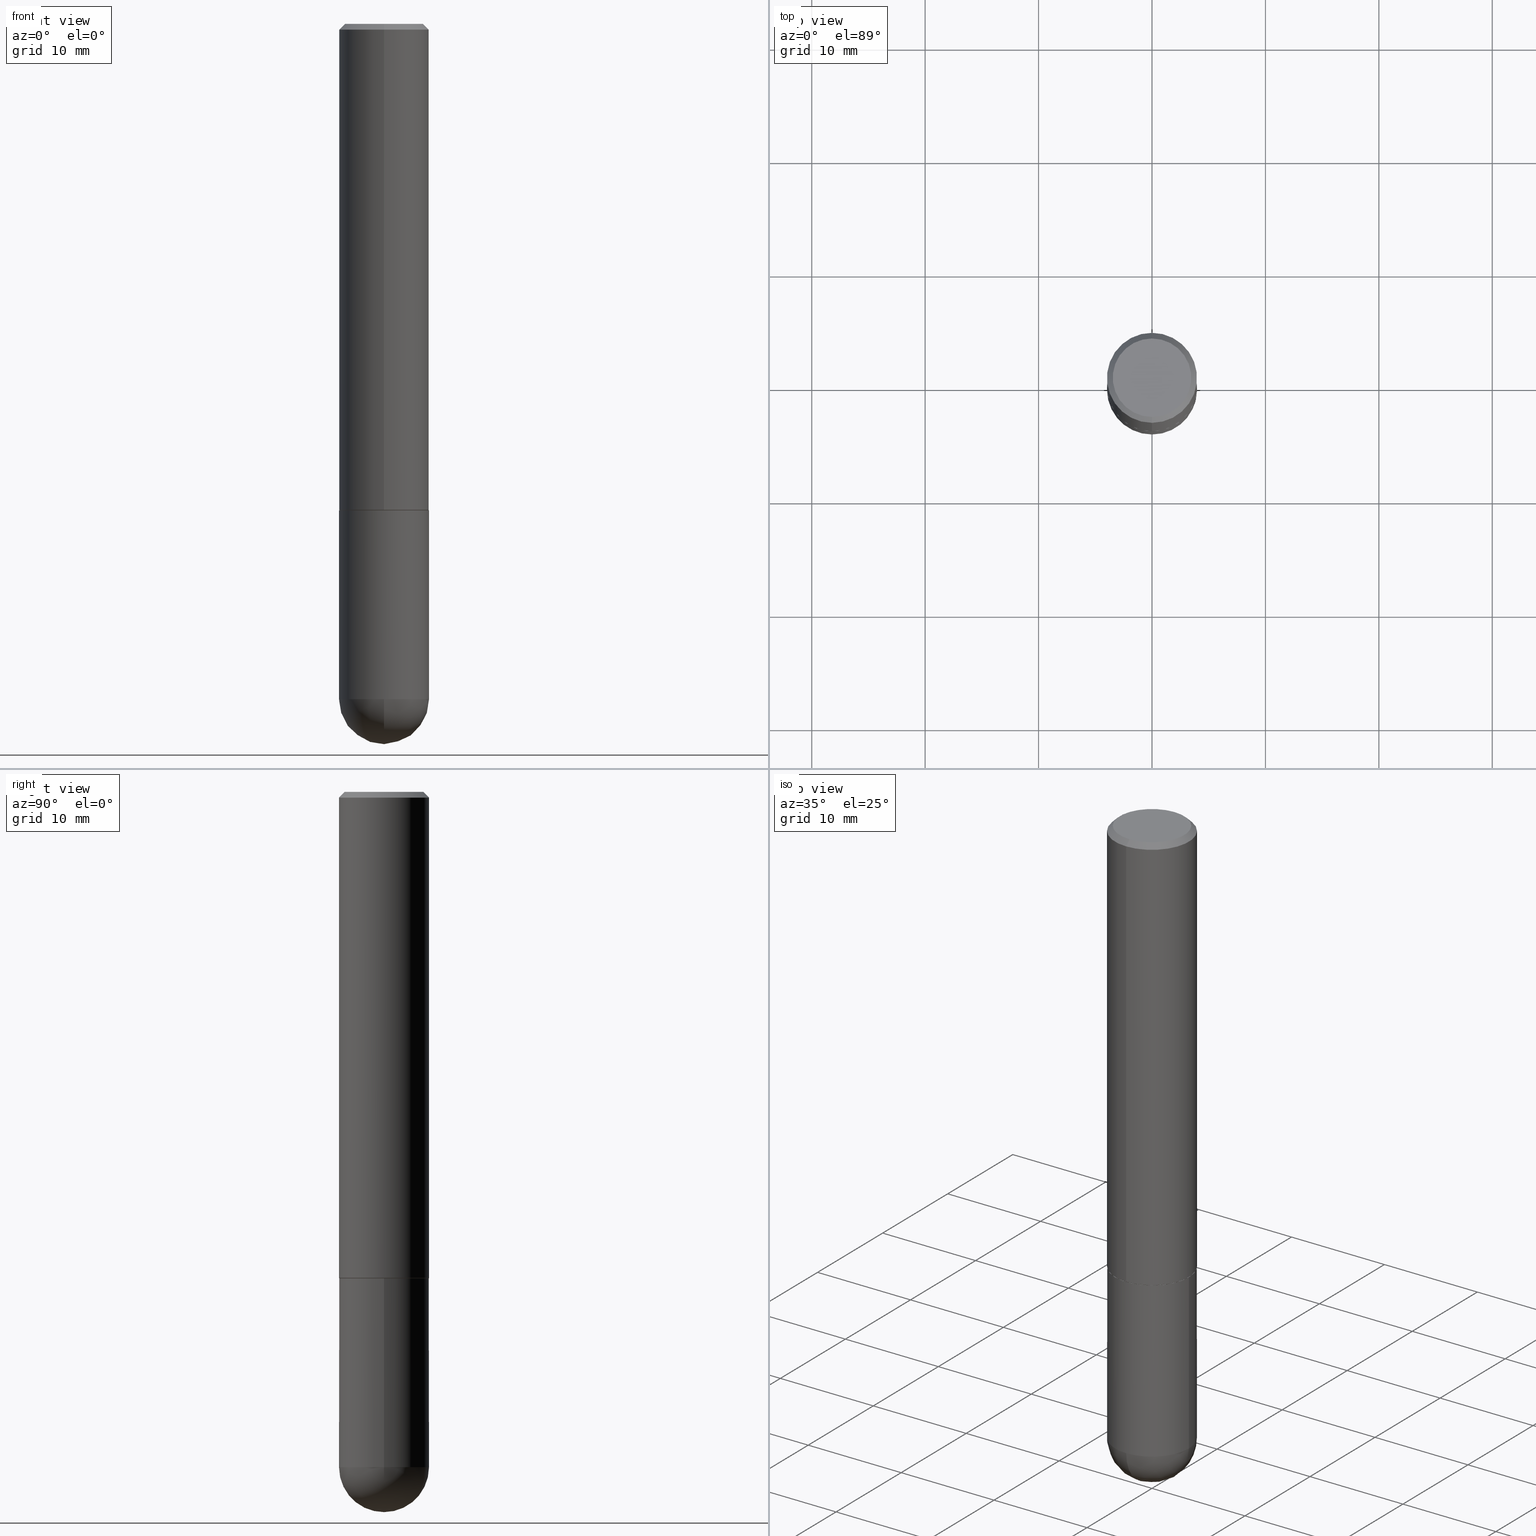
[diagram: canonical four-view strip — front | top / right | iso, engineering-drawing reading convention]
A machine part, canonical four-view strip (front | top / right | iso — engineering-drawing reading convention). The complete STEP part file that produces these views, byte-faithful:
ISO-10303-21;
HEADER;
FILE_DESCRIPTION (( 'STEP AP203' ),
    '1' );
FILE_NAME ('91283.STEP',
    '2024-04-10T12:36:15',
    ( '' ),
    ( '' ),
    'SwSTEP 2.0',
    'SolidWorks 2023',
    '' );
FILE_SCHEMA (( 'CONFIG_CONTROL_DESIGN' ));
ENDSEC;

DATA;
#1 = DIRECTION ( 'NONE',  ( -2.445468806185136597E-29, 3.491481338843145583E-15, 1.000000000000000000 ) ) ;
#2 = CIRCLE ( 'NONE', #44, 0.1562500000000000000 ) ;
#3 = DIRECTION ( 'NONE',  ( 1.000000000000000000, -6.982962677686269077E-15, 0.000000000000000000 ) ) ;
#4 = DIRECTION ( 'NONE',  ( -2.445472597884424153E-29, 3.491475908913955504E-15, 1.000000000000000000 ) ) ;
#5 = DIRECTION ( 'NONE',  ( -2.445468806185136597E-29, 3.491481338843145583E-15, 1.000000000000000000 ) ) ;
#6 = AXIS2_PLACEMENT_3D ( 'NONE', #33, #40, #387 ) ;
#7 = DIRECTION ( 'NONE',  ( -2.445472597884424153E-29, 3.491475908913955504E-15, 1.000000000000000000 ) ) ;
#8 = FACE_OUTER_BOUND ( 'NONE', #209, .T. ) ;
#9 = ADVANCED_FACE ( 'NONE', ( #281 ), #49, .F. ) ;
#10 = VERTEX_POINT ( 'NONE', #169 ) ;
#11 = AXIS2_PLACEMENT_3D ( 'NONE', #174, #4, #116 ) ;
#12 = VERTEX_POINT ( 'NONE', #194 ) ;
#13 = ADVANCED_FACE ( 'NONE', ( #137 ), #76, .T. ) ;
#14 = APPROVAL_PERSON_ORGANIZATION ( #57, #260, #412 ) ;
#15 = DIRECTION ( 'NONE',  ( -2.445468806185136877E-29, 3.491481338843145188E-15, 1.000000000000000000 ) ) ;
#16 = EDGE_LOOP ( 'NONE', ( #20, #198, #235, #113 ) ) ;
#17 = ORIENTED_EDGE ( 'NONE', *, *, #68, .T. ) ;
#18 = ORIENTED_EDGE ( 'NONE', *, *, #331, .T. ) ;
#19 = DIRECTION ( 'NONE',  ( -2.445472597884424153E-29, 3.491475908913955504E-15, 1.000000000000000000 ) ) ;
#20 = ORIENTED_EDGE ( 'NONE', *, *, #287, .F. ) ;
#21 = DIRECTION ( 'NONE',  ( 6.982962677686265922E-15, 1.000000000000000000, 0.000000000000000000 ) ) ;
#22 = SHAPE_DEFINITION_REPRESENTATION ( #377, #36 ) ;
#23 = ADVANCED_FACE ( 'NONE', ( #112 ), #397, .T. ) ;
#24 = CIRCLE ( 'NONE', #179, 0.1562500000000002498 ) ;
#25 = PERSON_AND_ORGANIZATION ( #50, #134 ) ;
#26 = DIRECTION ( 'NONE',  ( -2.445468806185136597E-29, 3.491481338843145583E-15, 1.000000000000000000 ) ) ;
#27 = PERSON_AND_ORGANIZATION_ROLE ( 'classification_officer' ) ;
#28 = CARTESIAN_POINT ( 'NONE',  ( 5.400447736582527652E-29, -8.657341756053672891E-15, -2.343750000000000000 ) ) ;
#29 = AXIS2_PLACEMENT_3D ( 'NONE', #98, #219, #126 ) ;
#30 = EDGE_CURVE ( 'NONE', #400, #10, #132, .T. ) ;
#31 = DIRECTION ( 'NONE',  ( 1.000000000000000000, -6.982962677686265922E-15, 4.883557194083112340E-29 ) ) ;
#32 =( CONVERSION_BASED_UNIT ( 'INCH', #314 ) LENGTH_UNIT ( ) NAMED_UNIT ( #344 ) );
#33 = CARTESIAN_POINT ( 'NONE',  ( 1.809228739571165048E-50, -2.583091122506221861E-36, -7.398278521445412385E-22 ) ) ;
#34 = EDGE_CURVE ( 'NONE', #258, #369, #2, .T. ) ;
#35 = ADVANCED_FACE ( 'NONE', ( #78 ), #259, .F. ) ;
#36 = ADVANCED_BREP_SHAPE_REPRESENTATION ( '91283', ( #84, #358, #354 ), #105 ) ;
#37 = DIRECTION ( 'NONE',  ( -2.445468806185136597E-29, 3.491481338843145583E-15, 1.000000000000000000 ) ) ;
#38 = CIRCLE ( 'NONE', #66, 0.1562500000000002498 ) ;
#39 = DIRECTION ( 'NONE',  ( -6.982962677686265133E-15, -1.000000000000000000, 3.496765431890256920E-15 ) ) ;
#40 = DIRECTION ( 'NONE',  ( -2.445472597884424153E-29, 3.491475908913955504E-15, 1.000000000000000000 ) ) ;
#41 = CARTESIAN_POINT ( 'NONE',  ( 4.890945195768856715E-31, -6.982951817827922742E-17, -0.02000000000000003511 ) ) ;
#42 = ORIENTED_EDGE ( 'NONE', *, *, #103, .T. ) ;
#43 = ORIENTED_EDGE ( 'NONE', *, *, #270, .F. ) ;
#44 = AXIS2_PLACEMENT_3D ( 'NONE', #41, #109, #39 ) ;
#45 = CC_DESIGN_APPROVAL ( #231, ( #376 ) ) ;
#46 = ORIENTED_EDGE ( 'NONE', *, *, #239, .F. ) ;
#47 = ORIENTED_EDGE ( 'NONE', *, *, #202, .T. ) ;
#48 = APPROVAL ( #378, 'UNSPECIFIED' ) ;
#49 = PLANE ( 'NONE',  #242 ) ;
#50 = PERSON ( 'UNSPECIFIED', 'UNSPECIFIED', 'UNSPECIFIED', ('UNSPECIFIED'), ('UNSPECIFIED'), ('UNSPECIFIED') ) ;
#51 = CARTESIAN_POINT ( 'NONE',  ( 0.000000000000000000, 0.000000000000000000, 0.000000000000000000 ) ) ;
#52 = ORIENTED_EDGE ( 'NONE', *, *, #279, .F. ) ;
#53 = CIRCLE ( 'NONE', #218, 0.1562500000000000000 ) ;
#54 = FACE_OUTER_BOUND ( 'NONE', #71, .T. ) ;
#55 = ORIENTED_EDGE ( 'NONE', *, *, #352, .F. ) ;
#56 = PERSON_AND_ORGANIZATION ( #50, #134 ) ;
#57 = PERSON_AND_ORGANIZATION ( #50, #134 ) ;
#58 = LOCAL_TIME ( 8, 36, 15.00000000000000000, #382 ) ;
#59 = CALENDAR_DATE ( 2024, 10, 4 ) ;
#60 = CARTESIAN_POINT ( 'NONE',  ( 0.1562500000000000000, -6.984708418355709513E-15, -1.688000000000000167 ) ) ;
#61 = DIRECTION ( 'NONE',  ( -2.445468806185136597E-29, 3.491481338843145583E-15, 1.000000000000000000 ) ) ;
#62 = ADVANCED_FACE ( 'NONE', ( #8 ), #293, .T. ) ;
#63 = APPLICATION_PROTOCOL_DEFINITION ( 'international standard', 'config_control_design', 1994, #120 ) ;
#64 = CARTESIAN_POINT ( 'NONE',  ( 1.110223024625178431E-15, 0.1562499999999943379, -1.687000000000000499 ) ) ;
#65 = VECTOR ( 'NONE', #274, 39.37007874015748143 ) ;
#66 = AXIS2_PLACEMENT_3D ( 'NONE', #28, #31, #21 ) ;
#67 = CARTESIAN_POINT ( 'NONE',  ( -1.071952812151801215E-15, -0.1562500000000000833, -0.01999999999999948694 ) ) ;
#68 = EDGE_CURVE ( 'NONE', #363, #258, #228, .T. ) ;
#69 = DIRECTION ( 'NONE',  ( -1.000000000000000000, 7.105427357601001070E-15, -4.926315508542082329E-29 ) ) ;
#70 = ADVANCED_FACE ( 'NONE', ( #252 ), #254, .T. ) ;
#71 = EDGE_LOOP ( 'NONE', ( #403, #162 ) ) ;
#72 = CONICAL_SURFACE ( 'NONE', #88, 0.1562500000000000000, 0.7853981633974472798 ) ;
#73 = DIRECTION ( 'NONE',  ( -1.000000000000000000, 6.982962677686265922E-15, -4.883557194083112340E-29 ) ) ;
#74 = VERTEX_POINT ( 'NONE', #146 ) ;
#75 = CARTESIAN_POINT ( 'NONE',  ( 4.127951344840510809E-29, -5.893620499967230340E-15, -1.688000000000000167 ) ) ;
#76 = SPHERICAL_SURFACE ( 'NONE', #295, 0.1562500000000002498 ) ;
#77 = VERTEX_POINT ( 'NONE', #296 ) ;
#78 = FACE_OUTER_BOUND ( 'NONE', #163, .T. ) ;
#79 = ORIENTED_EDGE ( 'NONE', *, *, #352, .T. ) ;
#80 = DIRECTION ( 'NONE',  ( -2.445472597884424153E-29, 3.491475908913955504E-15, 1.000000000000000000 ) ) ;
#81 = VERTEX_POINT ( 'NONE', #64 ) ;
#82 = EDGE_CURVE ( 'NONE', #266, #77, #407, .T. ) ;
#83 = LINE ( 'NONE', #309, #65 ) ;
#84 = MANIFOLD_SOLID_BREP ( 'Body-Move/Copy2[1]', #381 ) ;
#85 = CARTESIAN_POINT ( 'NONE',  ( -1.003347832174086081E-15, -0.1362500000000000100, 4.757128527616744041E-16 ) ) ;
#86 = ORIENTED_EDGE ( 'NONE', *, *, #366, .T. ) ;
#87 = VECTOR ( 'NONE', #236, 39.37007874015748143 ) ;
#88 = AXIS2_PLACEMENT_3D ( 'NONE', #347, #208, #336 ) ;
#89 = CYLINDRICAL_SURFACE ( 'NONE', #263, 0.1562500000000001110 ) ;
#90 = ADVANCED_FACE ( 'NONE', ( #187 ), #277, .T. ) ;
#91 = COORDINATED_UNIVERSAL_TIME_OFFSET ( 5, 0, .BEHIND. ) ;
#92 = APPLICATION_PROTOCOL_DEFINITION ( 'international standard', 'config_control_design', 1994, #210 ) ;
#93 = AXIS2_PLACEMENT_3D ( 'NONE', #145, #339, #385 ) ;
#94 = COORDINATED_UNIVERSAL_TIME_OFFSET ( 5, 0, .BEHIND. ) ;
#95 = DIRECTION ( 'NONE',  ( -6.982962677686265922E-15, -1.000000000000000000, 3.491475908913955110E-15 ) ) ;
#96 = DIRECTION ( 'NONE',  ( -6.982962677686265922E-15, -1.000000000000000000, 3.519288880726909138E-15 ) ) ;
#97 = PRODUCT ( '91283', '91283', '', ( #410 ) ) ;
#98 = CARTESIAN_POINT ( 'NONE',  ( 4.127957745228908341E-29, -5.893611334246756648E-15, -1.688000000000000167 ) ) ;
#99 = EDGE_CURVE ( 'NONE', #81, #77, #374, .T. ) ;
#100 = CIRCLE ( 'NONE', #225, 0.1562500000000000000 ) ;
#101 = CARTESIAN_POINT ( 'NONE',  ( 1.021258291611616664E-15, 0.1362500000000000100, -4.757143324173786552E-16 ) ) ;
#102 = DIRECTION ( 'NONE',  ( -2.445468806185136877E-29, 3.491481338843145188E-15, 1.000000000000000000 ) ) ;
#103 = EDGE_CURVE ( 'NONE', #142, #369, #83, .T. ) ;
#104 = CARTESIAN_POINT ( 'NONE',  ( 0.000000000000000000, 0.000000000000000000, 0.000000000000000000 ) ) ;
#105 =( GEOMETRIC_REPRESENTATION_CONTEXT ( 3 ) GLOBAL_UNCERTAINTY_ASSIGNED_CONTEXT ( ( #361 ) ) GLOBAL_UNIT_ASSIGNED_CONTEXT ( ( #32, #388, #251 ) ) REPRESENTATION_CONTEXT ( 'NONE', 'WORKASPACE' ) );
#106 = DIRECTION ( 'NONE',  ( -6.982962677686266711E-15, -1.000000000000000000, 3.491475908913955504E-15 ) ) ;
#107 = ORIENTED_EDGE ( 'NONE', *, *, #239, .T. ) ;
#108 = ORIENTED_EDGE ( 'NONE', *, *, #103, .F. ) ;
#109 = DIRECTION ( 'NONE',  ( -2.445472597884424153E-29, 3.491475908913955504E-15, 1.000000000000000000 ) ) ;
#110 = VERTEX_POINT ( 'NONE', #215 ) ;
#111 = ORIENTED_EDGE ( 'NONE', *, *, #348, .F. ) ;
#112 = FACE_OUTER_BOUND ( 'NONE', #360, .T. ) ;
#113 = ORIENTED_EDGE ( 'NONE', *, *, #99, .F. ) ;
#114 = DIRECTION ( 'NONE',  ( -6.982962677686265922E-15, -1.000000000000000000, 3.519288880726909138E-15 ) ) ;
#115 = ORIENTED_EDGE ( 'NONE', *, *, #30, .F. ) ;
#116 = DIRECTION ( 'NONE',  ( -6.982962677686265922E-15, -1.000000000000000000, 3.496765431890251792E-15 ) ) ;
#117 = AXIS2_PLACEMENT_3D ( 'NONE', #156, #7, #106 ) ;
#118 = CALENDAR_DATE ( 2024, 10, 4 ) ;
#119 = COORDINATED_UNIVERSAL_TIME_OFFSET ( 5, 0, .BEHIND. ) ;
#120 = APPLICATION_CONTEXT ( 'configuration controlled 3d designs of mechanical parts and assemblies' ) ;
#121 = CC_DESIGN_DATE_AND_TIME_ASSIGNMENT ( #342, #380, ( #343 ) ) ;
#122 = PERSON_AND_ORGANIZATION ( #50, #134 ) ;
#123 = CARTESIAN_POINT ( 'NONE',  ( 4.127957745228908341E-29, -5.893611334246756648E-15, -1.688000000000000167 ) ) ;
#124 = AXIS2_PLACEMENT_3D ( 'NONE', #375, #19, #96 ) ;
#125 = LINE ( 'NONE', #312, #409 ) ;
#126 = DIRECTION ( 'NONE',  ( -6.982962677686265922E-15, -1.000000000000000000, 3.519288880726909138E-15 ) ) ;
#127 = EDGE_CURVE ( 'NONE', #266, #12, #286, .T. ) ;
#128 = EDGE_CURVE ( 'NONE', #110, #400, #165, .T. ) ;
#129 = CIRCLE ( 'NONE', #313, 0.1562500000000000000 ) ;
#130 = CARTESIAN_POINT ( 'NONE',  ( 4.890945195768856715E-31, -6.982951817827922742E-17, -0.02000000000000003511 ) ) ;
#131 = DIRECTION ( 'NONE',  ( 4.937700262164542520E-15, 0.7071067811865443531, -0.7071067811865506814 ) ) ;
#132 = LINE ( 'NONE', #321, #172 ) ;
#133 = ORIENTED_EDGE ( 'NONE', *, *, #287, .T. ) ;
#134 = ORGANIZATION ( 'UNSPECIFIED', 'UNSPECIFIED', '' ) ;
#135 = DIRECTION ( 'NONE',  ( -6.982962677686265922E-15, -1.000000000000000000, 3.491475908913955504E-15 ) ) ;
#136 = ORIENTED_EDGE ( 'NONE', *, *, #315, .F. ) ;
#137 = FACE_OUTER_BOUND ( 'NONE', #233, .T. ) ;
#138 = ADVANCED_FACE ( 'NONE', ( #232 ), #297, .T. ) ;
#139 = ORIENTED_EDGE ( 'NONE', *, *, #404, .T. ) ;
#140 = DESIGN_CONTEXT ( 'detailed design', #210, 'design' ) ;
#141 = ORIENTED_EDGE ( 'NONE', *, *, #366, .F. ) ;
#142 = VERTEX_POINT ( 'NONE', #85 ) ;
#143 = AXIS2_PLACEMENT_3D ( 'NONE', #275, #265, #95 ) ;
#144 = APPROVAL_PERSON_ORGANIZATION ( #149, #48, #408 ) ;
#145 = CARTESIAN_POINT ( 'NONE',  ( 4.125512272631024333E-29, -5.890119858337843622E-15, -1.687000000000000055 ) ) ;
#146 = CARTESIAN_POINT ( 'NONE',  ( 0.1562500000000000000, -8.129477862328905246E-15, -2.343750000000000000 ) ) ;
#147 = APPROVAL_STATUS ( 'not_yet_approved' ) ;
#148 = CC_DESIGN_SECURITY_CLASSIFICATION ( #376, ( #238 ) ) ;
#149 = PERSON_AND_ORGANIZATION ( #50, #134 ) ;
#150 = ADVANCED_FACE ( 'NONE', ( #243 ), #89, .T. ) ;
#151 = DATE_TIME_ROLE ( 'classification_date' ) ;
#152 = CARTESIAN_POINT ( 'NONE',  ( 5.731567514496413899E-29, -8.183159387913622595E-15, -2.343750000000000000 ) ) ;
#153 = AXIS2_PLACEMENT_3D ( 'NONE', #104, #80, #135 ) ;
#154 = DIRECTION ( 'NONE',  ( -6.982962677686265922E-15, -1.000000000000000000, 3.491475908913955504E-15 ) ) ;
#155 = DIRECTION ( 'NONE',  ( -2.445472597884423873E-29, 3.491475908913955110E-15, 1.000000000000000000 ) ) ;
#156 = CARTESIAN_POINT ( 'NONE',  ( 1.809228739571165048E-50, -2.583091122506221861E-36, -7.398278521445412385E-22 ) ) ;
#157 = LINE ( 'NONE', #164, #248 ) ;
#158 = PRODUCT_RELATED_PRODUCT_CATEGORY ( 'detail', '', ( #97 ) ) ;
#159 = DIRECTION ( 'NONE',  ( 1.000000000000000000, -6.982962677686269077E-15, 0.000000000000000000 ) ) ;
#160 = ORIENTED_EDGE ( 'NONE', *, *, #315, .T. ) ;
#161 = FACE_OUTER_BOUND ( 'NONE', #364, .T. ) ;
#162 = ORIENTED_EDGE ( 'NONE', *, *, #249, .F. ) ;
#163 = EDGE_LOOP ( 'NONE', ( #86, #175 ) ) ;
#164 = CARTESIAN_POINT ( 'NONE',  ( 0.1562500000000000000, -1.091087918388479174E-15, 7.619026212181150377E-30 ) ) ;
#165 = CIRCLE ( 'NONE', #401, 0.1562500000000000000 ) ;
#166 = DIRECTION ( 'NONE',  ( -1.000000000000000000, 6.982962677686265922E-15, -4.883557194083112340E-29 ) ) ;
#167 = ORIENTED_EDGE ( 'NONE', *, *, #331, .F. ) ;
#168 = AXIS2_PLACEMENT_3D ( 'NONE', #130, #391, #394 ) ;
#169 = CARTESIAN_POINT ( 'NONE',  ( -0.1562500000000000000, -5.928166919315269532E-15, -1.688000000000000167 ) ) ;
#170 = DIRECTION ( 'NONE',  ( 2.445472597884424153E-29, -3.491475908913955110E-15, -1.000000000000000000 ) ) ;
#171 = DIRECTION ( 'NONE',  ( 1.000000000000000000, -6.982962677686266711E-15, 4.876176775795936353E-29 ) ) ;
#172 = VECTOR ( 'NONE', #15, 39.37007874015748143 ) ;
#173 = AXIS2_PLACEMENT_3D ( 'NONE', #283, #166, #205 ) ;
#174 = CARTESIAN_POINT ( 'NONE',  ( 4.125512272631024333E-29, -5.890119858337843622E-15, -1.687000000000000055 ) ) ;
#175 = ORIENTED_EDGE ( 'NONE', *, *, #340, .T. ) ;
#176 = EDGE_CURVE ( 'NONE', #77, #81, #311, .T. ) ;
#177 = DATE_AND_TIME ( #59, #213 ) ;
#178 = CALENDAR_DATE ( 2024, 10, 4 ) ;
#179 = AXIS2_PLACEMENT_3D ( 'NONE', #247, #69, #190 ) ;
#180 = ADVANCED_FACE ( 'NONE', ( #183 ), #72, .T. ) ;
#181 = DATE_AND_TIME ( #276, #58 ) ;
#182 = DIRECTION ( 'NONE',  ( 0.000000000000000000, 0.000000000000000000, 1.000000000000000000 ) ) ;
#183 = FACE_OUTER_BOUND ( 'NONE', #365, .T. ) ;
#184 = PERSON_AND_ORGANIZATION ( #50, #134 ) ;
#185 = DIRECTION ( 'NONE',  ( -2.445468806185136597E-29, 3.491481338843145583E-15, 1.000000000000000000 ) ) ;
#186 = AXIS2_PLACEMENT_3D ( 'NONE', #51, #26, #171 ) ;
#187 = FACE_OUTER_BOUND ( 'NONE', #227, .T. ) ;
#188 = VECTOR ( 'NONE', #392, 39.37007874015748143 ) ;
#189 = ADVANCED_FACE ( 'NONE', ( #54 ), #307, .F. ) ;
#190 = DIRECTION ( 'NONE',  ( -7.105427357601000281E-15, -1.000000000000000000, 0.000000000000000000 ) ) ;
#191 = DIRECTION ( 'NONE',  ( 1.000000000000000000, -6.982962677686262766E-15, 0.000000000000000000 ) ) ;
#192 = CC_DESIGN_PERSON_AND_ORGANIZATION_ASSIGNMENT ( #306, #384, ( #343 ) ) ;
#193 = LINE ( 'NONE', #220, #338 ) ;
#194 = CARTESIAN_POINT ( 'NONE',  ( 1.106670310946397649E-15, 0.1552499999999940872, -1.688000000000000611 ) ) ;
#195 = AXIS2_PLACEMENT_3D ( 'NONE', #386, #216, #114 ) ;
#196 = CARTESIAN_POINT ( 'NONE',  ( -0.1562500000000000000, -5.928166919315270321E-15, -2.343750000000000000 ) ) ;
#197 = DIRECTION ( 'NONE',  ( 6.982962677686265922E-15, 1.000000000000000000, -3.496765431890251398E-15 ) ) ;
#198 = ORIENTED_EDGE ( 'NONE', *, *, #249, .T. ) ;
#199 = CARTESIAN_POINT ( 'NONE',  ( 5.731567514496413899E-29, -8.183159387913622595E-15, -2.343750000000000000 ) ) ;
#200 = DIRECTION ( 'NONE',  ( -1.000000000000000000, 6.982962677686265922E-15, -4.876176775795935793E-29 ) ) ;
#201 = ORIENTED_EDGE ( 'NONE', *, *, #176, .T. ) ;
#202 = EDGE_CURVE ( 'NONE', #324, #110, #38, .T. ) ;
#203 = CARTESIAN_POINT ( 'NONE',  ( 9.514286648347539576E-16, 0.1362500000000000100, -4.757139625034526170E-16 ) ) ;
#204 = LOCAL_TIME ( 8, 36, 15.00000000000000000, #94 ) ;
#205 = DIRECTION ( 'NONE',  ( 6.982962677686265922E-15, 1.000000000000000000, -3.496765431890251398E-15 ) ) ;
#206 = DIRECTION ( 'NONE',  ( -2.445472597884424153E-29, 3.491475908913955504E-15, 1.000000000000000000 ) ) ;
#207 = VERTEX_POINT ( 'NONE', #60 ) ;
#208 = DIRECTION ( 'NONE',  ( 2.445472597884424153E-29, -3.491475908913955504E-15, -1.000000000000000000 ) ) ;
#209 = EDGE_LOOP ( 'NONE', ( #46, #284, #262, #261 ) ) ;
#210 = APPLICATION_CONTEXT ( 'configuration controlled 3d designs of mechanical parts and assemblies' ) ;
#211 = DIRECTION ( 'NONE',  ( 1.000000000000000000, -6.982962677686266711E-15, 4.876176775795936353E-29 ) ) ;
#212 = PERSON_AND_ORGANIZATION_ROLE ( 'design_owner' ) ;
#213 = LOCAL_TIME ( 8, 36, 15.00000000000000000, #119 ) ;
#214 = APPROVAL_DATE_TIME ( #303, #48 ) ;
#215 = CARTESIAN_POINT ( 'NONE',  ( 1.091087918388535577E-15, 0.1562499999999916733, -2.343750000000000444 ) ) ;
#216 = DIRECTION ( 'NONE',  ( -2.445472597884424153E-29, 3.491475908913955504E-15, 1.000000000000000000 ) ) ;
#217 = CARTESIAN_POINT ( 'NONE',  ( 1.103117597267596553E-15, 0.1552499999999940872, -1.688000000000000611 ) ) ;
#218 = AXIS2_PLACEMENT_3D ( 'NONE', #317, #355, #280 ) ;
#219 = DIRECTION ( 'NONE',  ( -2.445472597884424153E-29, 3.491475908913955504E-15, 1.000000000000000000 ) ) ;
#220 = CARTESIAN_POINT ( 'NONE',  ( -1.091087918388479765E-15, -0.1562500000000001110, 5.455431107678059296E-16 ) ) ;
#221 = EDGE_CURVE ( 'NONE', #10, #207, #129, .T. ) ;
#222 = LINE ( 'NONE', #217, #188 ) ;
#223 = AXIS2_PLACEMENT_3D ( 'NONE', #203, #170, #328 ) ;
#224 = ORIENTED_EDGE ( 'NONE', *, *, #294, .F. ) ;
#225 = AXIS2_PLACEMENT_3D ( 'NONE', #75, #5, #159 ) ;
#226 = FACE_OUTER_BOUND ( 'NONE', #16, .T. ) ;
#227 = EDGE_LOOP ( 'NONE', ( #115, #79, #229, #257, #402 ) ) ;
#228 = LINE ( 'NONE', #332, #335 ) ;
#229 = ORIENTED_EDGE ( 'NONE', *, *, #294, .T. ) ;
#230 = LOCAL_TIME ( 8, 36, 15.00000000000000000, #91 ) ;
#231 = APPROVAL ( #240, 'UNSPECIFIED' ) ;
#232 = FACE_OUTER_BOUND ( 'NONE', #323, .T. ) ;
#233 = EDGE_LOOP ( 'NONE', ( #136, #47, #167, #224 ) ) ;
#234 = CARTESIAN_POINT ( 'NONE',  ( -1.084104955710751547E-15, -0.1552500000000059110, -1.687999999999999501 ) ) ;
#235 = ORIENTED_EDGE ( 'NONE', *, *, #82, .T. ) ;
#236 = DIRECTION ( 'NONE',  ( -4.937700262164884886E-15, -0.7071067811865933139, 0.7071067811865017205 ) ) ;
#237 = APPROVAL_DATE_TIME ( #181, #231 ) ;
#238 = PRODUCT_DEFINITION_FORMATION_WITH_SPECIFIED_SOURCE ( 'ANY', '', #97, .NOT_KNOWN. ) ;
#239 = EDGE_CURVE ( 'NONE', #81, #258, #125, .T. ) ;
#240 = APPROVAL_STATUS ( 'not_yet_approved' ) ;
#241 = CALENDAR_DATE ( 2024, 10, 4 ) ;
#242 = AXIS2_PLACEMENT_3D ( 'NONE', #393, #367, #200 ) ;
#243 = FACE_OUTER_BOUND ( 'NONE', #290, .T. ) ;
#244 = AXIS2_PLACEMENT_3D ( 'NONE', #246, #353, #316 ) ;
#245 = CARTESIAN_POINT ( 'NONE',  ( 0.000000000000000000, 0.000000000000000000, 0.000000000000000000 ) ) ;
#246 = CARTESIAN_POINT ( 'NONE',  ( 4.890945195768856715E-31, -6.982951817827922742E-17, -0.02000000000000003511 ) ) ;
#247 = CARTESIAN_POINT ( 'NONE',  ( 5.400447736582527652E-29, -8.657341756053672891E-15, -2.343750000000000000 ) ) ;
#248 = VECTOR ( 'NONE', #102, 39.37007874015748143 ) ;
#249 = EDGE_CURVE ( 'NONE', #12, #266, #389, .T. ) ;
#250 = CARTESIAN_POINT ( 'NONE',  ( 5.789233224183170584E-29, -9.193318162129576161E-15, -2.500000000000000000 ) ) ;
#251 =( NAMED_UNIT ( * ) SI_UNIT ( $, .STERADIAN. ) SOLID_ANGLE_UNIT ( ) );
#252 = FACE_OUTER_BOUND ( 'NONE', #356, .T. ) ;
#253 = COORDINATED_UNIVERSAL_TIME_OFFSET ( 5, 0, .BEHIND. ) ;
#254 = CYLINDRICAL_SURFACE ( 'NONE', #310, 0.1562500000000000000 ) ;
#255 = CIRCLE ( 'NONE', #117, 0.1362500000000000100 ) ;
#256 = ORIENTED_EDGE ( 'NONE', *, *, #34, .T. ) ;
#257 = ORIENTED_EDGE ( 'NONE', *, *, #270, .T. ) ;
#258 = VERTEX_POINT ( 'NONE', #350 ) ;
#259 = PLANE ( 'NONE',  #223 ) ;
#260 = APPROVAL ( #147, 'UNSPECIFIED' ) ;
#261 = ORIENTED_EDGE ( 'NONE', *, *, #34, .F. ) ;
#262 = ORIENTED_EDGE ( 'NONE', *, *, #279, .T. ) ;
#263 = AXIS2_PLACEMENT_3D ( 'NONE', #245, #370, #154 ) ;
#264 = CIRCLE ( 'NONE', #289, 0.1562500000000000000 ) ;
#265 = DIRECTION ( 'NONE',  ( -2.445472597884424153E-29, 3.491475908913955110E-15, 1.000000000000000000 ) ) ;
#266 = VERTEX_POINT ( 'NONE', #268 ) ;
#267 = ADVANCED_FACE ( 'NONE', ( #226 ), #359, .T. ) ;
#268 = CARTESIAN_POINT ( 'NONE',  ( -1.084104955710751547E-15, -0.1552500000000059110, -1.687999999999999501 ) ) ;
#269 = APPROVAL_DATE_TIME ( #177, #260 ) ;
#270 = EDGE_CURVE ( 'NONE', #74, #207, #157, .T. ) ;
#271 = CONICAL_SURFACE ( 'NONE', #168, 0.1562500000000000000, 0.7853981633974472798 ) ;
#272 = SECURITY_CLASSIFICATION_LEVEL ( 'unclassified' ) ;
#273 = CC_DESIGN_PERSON_AND_ORGANIZATION_ASSIGNMENT ( #25, #346, ( #238 ) ) ;
#274 = DIRECTION ( 'NONE',  ( -4.851104656540958753E-15, -0.7071067811865492381, -0.7071067811865457964 ) ) ;
#275 = CARTESIAN_POINT ( 'NONE',  ( 4.127957745228908341E-29, -5.893611334246756648E-15, -1.688000000000000167 ) ) ;
#276 = CALENDAR_DATE ( 2024, 10, 4 ) ;
#277 = CYLINDRICAL_SURFACE ( 'NONE', #186, 0.1562500000000000000 ) ;
#278 = DIRECTION ( 'NONE',  ( 1.000000000000000000, -6.982962677686262766E-15, 0.000000000000000000 ) ) ;
#279 = EDGE_CURVE ( 'NONE', #77, #369, #193, .T. ) ;
#280 = DIRECTION ( 'NONE',  ( 1.000000000000000000, -6.982962677686262766E-15, 0.000000000000000000 ) ) ;
#281 = FACE_OUTER_BOUND ( 'NONE', #334, .T. ) ;
#282 =( LENGTH_UNIT ( ) NAMED_UNIT ( * ) SI_UNIT ( $, .METRE. ) );
#283 = CARTESIAN_POINT ( 'NONE',  ( 5.400447736582527652E-29, -8.657341756053672891E-15, -2.343750000000000000 ) ) ;
#284 = ORIENTED_EDGE ( 'NONE', *, *, #99, .T. ) ;
#285 = CARTESIAN_POINT ( 'NONE',  ( -1.110223024625101517E-15, -0.1562500000000085487, -2.343749999999999556 ) ) ;
#286 = CIRCLE ( 'NONE', #351, 0.1552499999999999991 ) ;
#287 = EDGE_CURVE ( 'NONE', #12, #81, #222, .T. ) ;
#288 = CARTESIAN_POINT ( 'NONE',  ( 5.400447736582527652E-29, -8.657341756053672891E-15, -2.343750000000000000 ) ) ;
#289 = AXIS2_PLACEMENT_3D ( 'NONE', #322, #325, #191 ) ;
#290 = EDGE_LOOP ( 'NONE', ( #201, #107, #111, #52 ) ) ;
#291 = ORIENTED_EDGE ( 'NONE', *, *, #128, .F. ) ;
#292 = ORIENTED_EDGE ( 'NONE', *, *, #82, .F. ) ;
#293 = CYLINDRICAL_SURFACE ( 'NONE', #153, 0.1562500000000001110 ) ;
#294 = EDGE_CURVE ( 'NONE', #337, #74, #53, .T. ) ;
#295 = AXIS2_PLACEMENT_3D ( 'NONE', #288, #73, #197 ) ;
#296 = CARTESIAN_POINT ( 'NONE',  ( -1.091087918388439336E-15, -0.1562500000000060785, -1.686999999999999611 ) ) ;
#297 = CONICAL_SURFACE ( 'NONE', #124, 0.1552499999999999991, 0.7853981633975165577 ) ;
#298 = ORIENTED_EDGE ( 'NONE', *, *, #404, .F. ) ;
#299 = CC_DESIGN_APPROVAL ( #260, ( #343 ) ) ;
#300 = CARTESIAN_POINT ( 'NONE',  ( 0.000000000000000000, 0.000000000000000000, 0.000000000000000000 ) ) ;
#301 = DATE_AND_TIME ( #118, #319 ) ;
#302 = APPROVAL_ROLE ( '' ) ;
#303 = DATE_AND_TIME ( #178, #230 ) ;
#304 = CIRCLE ( 'NONE', #368, 0.1562500000000000000 ) ;
#305 = CC_DESIGN_DATE_AND_TIME_ASSIGNMENT ( #301, #151, ( #376 ) ) ;
#306 = PERSON_AND_ORGANIZATION ( #50, #134 ) ;
#307 = PLANE ( 'NONE',  #143 ) ;
#308 = PERSON_AND_ORGANIZATION_ROLE ( 'design_supplier' ) ;
#309 = CARTESIAN_POINT ( 'NONE',  ( -1.071952812151801215E-15, -0.1562500000000000833, -0.01999999999999948694 ) ) ;
#310 = AXIS2_PLACEMENT_3D ( 'NONE', #300, #185, #211 ) ;
#311 = CIRCLE ( 'NONE', #93, 0.1562500000000002220 ) ;
#312 = CARTESIAN_POINT ( 'NONE',  ( 1.110223024625157132E-15, 0.1562500000000001110, -5.455431107678059296E-16 ) ) ;
#313 = AXIS2_PLACEMENT_3D ( 'NONE', #405, #61, #3 ) ;
#314 = LENGTH_MEASURE_WITH_UNIT ( LENGTH_MEASURE( 0.02539999999999999897 ), #282 );
#315 = EDGE_CURVE ( 'NONE', #324, #337, #24, .T. ) ;
#316 = DIRECTION ( 'NONE',  ( -6.982962677686265133E-15, -1.000000000000000000, 3.496765431890256920E-15 ) ) ;
#317 = CARTESIAN_POINT ( 'NONE',  ( 5.731567514496413899E-29, -8.183159387913622595E-15, -2.343750000000000000 ) ) ;
#318 = CIRCLE ( 'NONE', #244, 0.1562500000000000000 ) ;
#319 = LOCAL_TIME ( 8, 36, 15.00000000000000000, #253 ) ;
#320 = CC_DESIGN_PERSON_AND_ORGANIZATION_ASSIGNMENT ( #184, #308, ( #238 ) ) ;
#321 = CARTESIAN_POINT ( 'NONE',  ( -0.1562500000000000000, 1.110223024625156540E-15, -7.685836078523291160E-30 ) ) ;
#322 = CARTESIAN_POINT ( 'NONE',  ( 5.731567514496413899E-29, -8.183159387913622595E-15, -2.343750000000000000 ) ) ;
#323 = EDGE_LOOP ( 'NONE', ( #326, #133, #371, #292 ) ) ;
#324 = VERTEX_POINT ( 'NONE', #250 ) ;
#325 = DIRECTION ( 'NONE',  ( -2.445468806185136597E-29, 3.491481338843145583E-15, 1.000000000000000000 ) ) ;
#326 = ORIENTED_EDGE ( 'NONE', *, *, #127, .T. ) ;
#327 = ORIENTED_EDGE ( 'NONE', *, *, #68, .F. ) ;
#328 = DIRECTION ( 'NONE',  ( 6.982962677686265922E-15, 1.000000000000000000, -3.491475908913955110E-15 ) ) ;
#329 = CC_DESIGN_APPROVAL ( #48, ( #238 ) ) ;
#330 = ORIENTED_EDGE ( 'NONE', *, *, #348, .T. ) ;
#331 = EDGE_CURVE ( 'NONE', #74, #110, #264, .T. ) ;
#332 = CARTESIAN_POINT ( 'NONE',  ( 1.091087918388479568E-15, 0.1562499999999999445, -0.02000000000000057981 ) ) ;
#333 = DIRECTION ( 'NONE',  ( -6.982962677686265922E-15, -1.000000000000000000, 3.519288880726909138E-15 ) ) ;
#334 = EDGE_LOOP ( 'NONE', ( #139, #406 ) ) ;
#335 = VECTOR ( 'NONE', #131, 39.37007874015748143 ) ;
#336 = DIRECTION ( 'NONE',  ( 6.982962677686265133E-15, 1.000000000000000000, -3.496765431890256920E-15 ) ) ;
#337 = VERTEX_POINT ( 'NONE', #285 ) ;
#338 = VECTOR ( 'NONE', #362, 39.37007874015748143 ) ;
#339 = DIRECTION ( 'NONE',  ( -2.445472597884424153E-29, 3.491475908913955504E-15, 1.000000000000000000 ) ) ;
#340 = EDGE_CURVE ( 'NONE', #142, #363, #255, .T. ) ;
#341 = CARTESIAN_POINT ( 'NONE',  ( 0.000000000000000000, 0.000000000000000000, 0.000000000000000000 ) ) ;
#342 = DATE_AND_TIME ( #241, #204 ) ;
#343 = PRODUCT_DEFINITION ( 'UNKNOWN', '', #238, #140 ) ;
#344 = DIMENSIONAL_EXPONENTS ( 1.000000000000000000, 0.000000000000000000, 0.000000000000000000, 0.000000000000000000, 0.000000000000000000, 0.000000000000000000, 0.000000000000000000 ) ;
#345 = PERSON_AND_ORGANIZATION ( #50, #134 ) ;
#346 = PERSON_AND_ORGANIZATION_ROLE ( 'creator' ) ;
#347 = CARTESIAN_POINT ( 'NONE',  ( 4.890945195768856715E-31, -6.982951817827922742E-17, -0.02000000000000003511 ) ) ;
#348 = EDGE_CURVE ( 'NONE', #369, #258, #318, .T. ) ;
#349 = DIRECTION ( 'NONE',  ( 1.000000000000000000, 0.000000000000000000, 0.000000000000000000 ) ) ;
#350 = CARTESIAN_POINT ( 'NONE',  ( 1.091087918388479568E-15, 0.1562499999999999445, -0.02000000000000057981 ) ) ;
#351 = AXIS2_PLACEMENT_3D ( 'NONE', #123, #206, #333 ) ;
#352 = EDGE_CURVE ( 'NONE', #400, #337, #304, .T. ) ;
#353 = DIRECTION ( 'NONE',  ( -2.445472597884424153E-29, 3.491475908913955504E-15, 1.000000000000000000 ) ) ;
#354 = AXIS2_PLACEMENT_3D ( 'NONE', #341, #182, #349 ) ;
#355 = DIRECTION ( 'NONE',  ( -2.445468806185136597E-29, 3.491481338843145583E-15, 1.000000000000000000 ) ) ;
#356 = EDGE_LOOP ( 'NONE', ( #399, #398, #298, #43, #18 ) ) ;
#357 = CLOSED_SHELL ( 'NONE', ( #138, #150, #180, #411, #62, #267, #189, #35 ) ) ;
#358 = MANIFOLD_SOLID_BREP ( 'Body-Move/Copy2[2]', #357 ) ;
#359 = CONICAL_SURFACE ( 'NONE', #29, 0.1552499999999999991, 0.7853981633975165577 ) ;
#360 = EDGE_LOOP ( 'NONE', ( #396, #160, #55, #291 ) ) ;
#361 = UNCERTAINTY_MEASURE_WITH_UNIT (LENGTH_MEASURE( 1.000000000000000082E-05 ), #32, 'distance_accuracy_value', 'NONE');
#362 = DIRECTION ( 'NONE',  ( -2.445472597884423873E-29, 3.491475908913955110E-15, 1.000000000000000000 ) ) ;
#363 = VERTEX_POINT ( 'NONE', #101 ) ;
#364 = EDGE_LOOP ( 'NONE', ( #108, #141, #17, #256 ) ) ;
#365 = EDGE_LOOP ( 'NONE', ( #373, #42, #330, #327 ) ) ;
#366 = EDGE_CURVE ( 'NONE', #363, #142, #395, .T. ) ;
#367 = DIRECTION ( 'NONE',  ( 2.438088387897960049E-29, -3.491481338843145188E-15, -1.000000000000000000 ) ) ;
#368 = AXIS2_PLACEMENT_3D ( 'NONE', #199, #37, #278 ) ;
#369 = VERTEX_POINT ( 'NONE', #67 ) ;
#370 = DIRECTION ( 'NONE',  ( -2.445472597884424153E-29, 3.491475908913955504E-15, 1.000000000000000000 ) ) ;
#371 = ORIENTED_EDGE ( 'NONE', *, *, #176, .F. ) ;
#372 = DIRECTION ( 'NONE',  ( 1.000000000000000000, -6.982962677686262766E-15, 0.000000000000000000 ) ) ;
#373 = ORIENTED_EDGE ( 'NONE', *, *, #340, .F. ) ;
#374 = CIRCLE ( 'NONE', #11, 0.1562500000000002220 ) ;
#375 = CARTESIAN_POINT ( 'NONE',  ( 4.127957745228908341E-29, -5.893611334246756648E-15, -1.688000000000000167 ) ) ;
#376 = SECURITY_CLASSIFICATION ( '', '', #272 ) ;
#377 = PRODUCT_DEFINITION_SHAPE ( 'NONE', 'NONE',  #343 ) ;
#378 = APPROVAL_STATUS ( 'not_yet_approved' ) ;
#379 = CC_DESIGN_PERSON_AND_ORGANIZATION_ASSIGNMENT ( #56, #212, ( #97 ) ) ;
#380 = DATE_TIME_ROLE ( 'creation_date' ) ;
#381 = CLOSED_SHELL ( 'NONE', ( #70, #23, #13, #9, #90 ) ) ;
#382 = COORDINATED_UNIVERSAL_TIME_OFFSET ( 5, 0, .BEHIND. ) ;
#383 = APPROVAL_PERSON_ORGANIZATION ( #345, #231, #302 ) ;
#384 = PERSON_AND_ORGANIZATION_ROLE ( 'creator' ) ;
#385 = DIRECTION ( 'NONE',  ( -6.982962677686265922E-15, -1.000000000000000000, 3.496765431890251792E-15 ) ) ;
#386 = CARTESIAN_POINT ( 'NONE',  ( 4.127957745228908341E-29, -5.893611334246756648E-15, -1.688000000000000167 ) ) ;
#387 = DIRECTION ( 'NONE',  ( -6.982962677686266711E-15, -1.000000000000000000, 3.491475908913955504E-15 ) ) ;
#388 =( NAMED_UNIT ( * ) PLANE_ANGLE_UNIT ( ) SI_UNIT ( $, .RADIAN. ) );
#389 = CIRCLE ( 'NONE', #195, 0.1552499999999999991 ) ;
#390 = CC_DESIGN_PERSON_AND_ORGANIZATION_ASSIGNMENT ( #122, #27, ( #376 ) ) ;
#391 = DIRECTION ( 'NONE',  ( 2.445472597884424153E-29, -3.491475908913955504E-15, -1.000000000000000000 ) ) ;
#392 = DIRECTION ( 'NONE',  ( 5.024295867788404755E-15, 0.7071067811865981989, 0.7071067811864968355 ) ) ;
#393 = CARTESIAN_POINT ( 'NONE',  ( 1.091087918388520392E-15, 0.1562499999999940881, -1.688000000000000611 ) ) ;
#394 = DIRECTION ( 'NONE',  ( 6.982962677686265133E-15, 1.000000000000000000, -3.496765431890256920E-15 ) ) ;
#395 = CIRCLE ( 'NONE', #6, 0.1362500000000000100 ) ;
#396 = ORIENTED_EDGE ( 'NONE', *, *, #202, .F. ) ;
#397 = SPHERICAL_SURFACE ( 'NONE', #173, 0.1562500000000002498 ) ;
#398 = ORIENTED_EDGE ( 'NONE', *, *, #30, .T. ) ;
#399 = ORIENTED_EDGE ( 'NONE', *, *, #128, .T. ) ;
#400 = VERTEX_POINT ( 'NONE', #196 ) ;
#401 = AXIS2_PLACEMENT_3D ( 'NONE', #152, #1, #372 ) ;
#402 = ORIENTED_EDGE ( 'NONE', *, *, #221, .F. ) ;
#403 = ORIENTED_EDGE ( 'NONE', *, *, #127, .F. ) ;
#404 = EDGE_CURVE ( 'NONE', #207, #10, #100, .T. ) ;
#405 = CARTESIAN_POINT ( 'NONE',  ( 4.127951344840510809E-29, -5.893620499967230340E-15, -1.688000000000000167 ) ) ;
#406 = ORIENTED_EDGE ( 'NONE', *, *, #221, .T. ) ;
#407 = LINE ( 'NONE', #234, #87 ) ;
#408 = APPROVAL_ROLE ( '' ) ;
#409 = VECTOR ( 'NONE', #155, 39.37007874015748143 ) ;
#410 = MECHANICAL_CONTEXT ( 'NONE', #120, 'mechanical' ) ;
#411 = ADVANCED_FACE ( 'NONE', ( #161 ), #271, .T. ) ;
#412 = APPROVAL_ROLE ( '' ) ;
ENDSEC;
END-ISO-10303-21;
